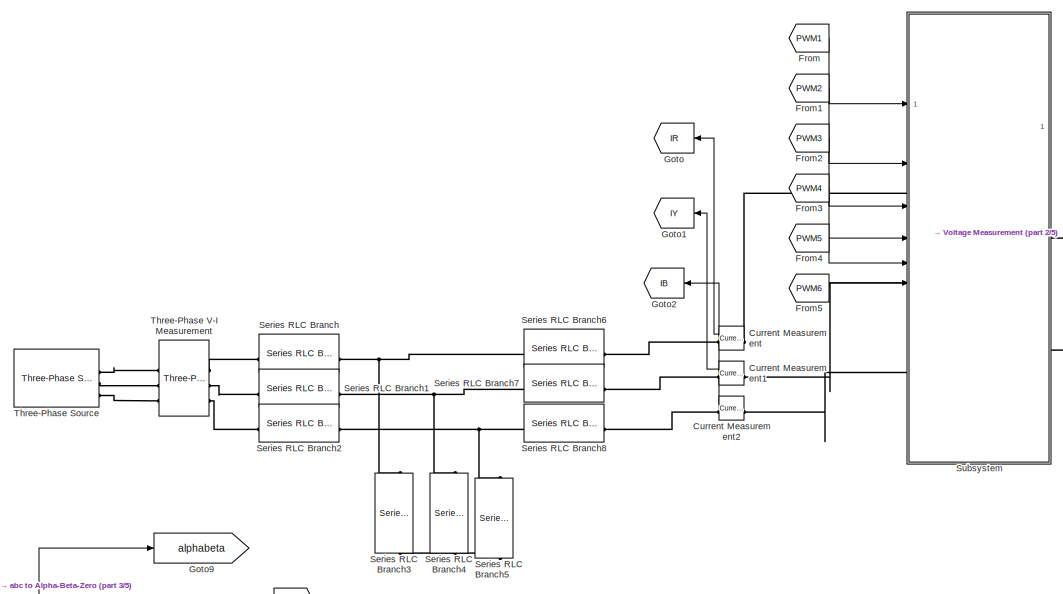
[diagram: root canvas - part 1/5, top left region]
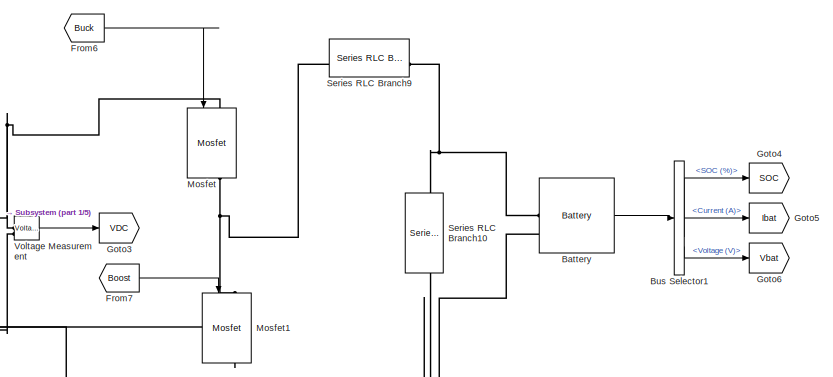
[diagram: root canvas - part 2/5, top center region]
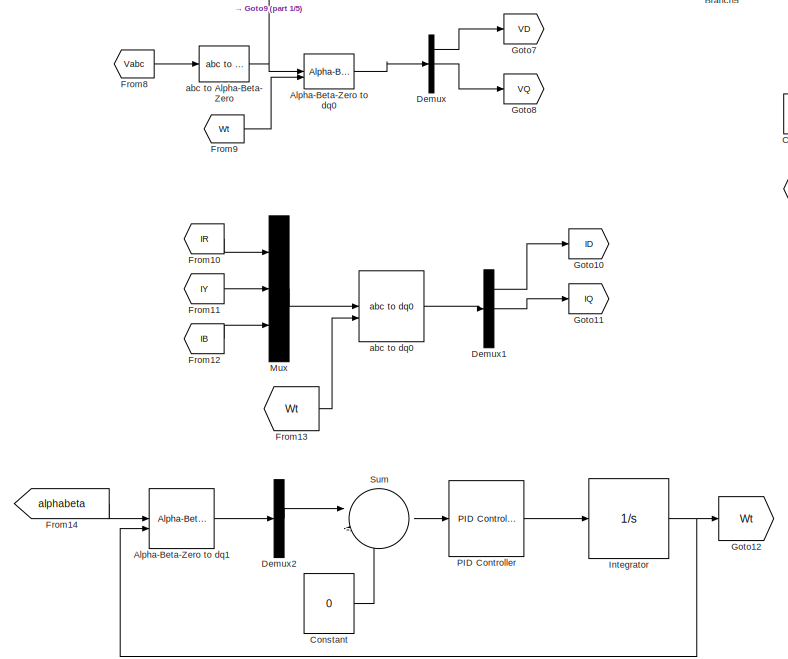
[diagram: root canvas - part 3/5, bottom left region]
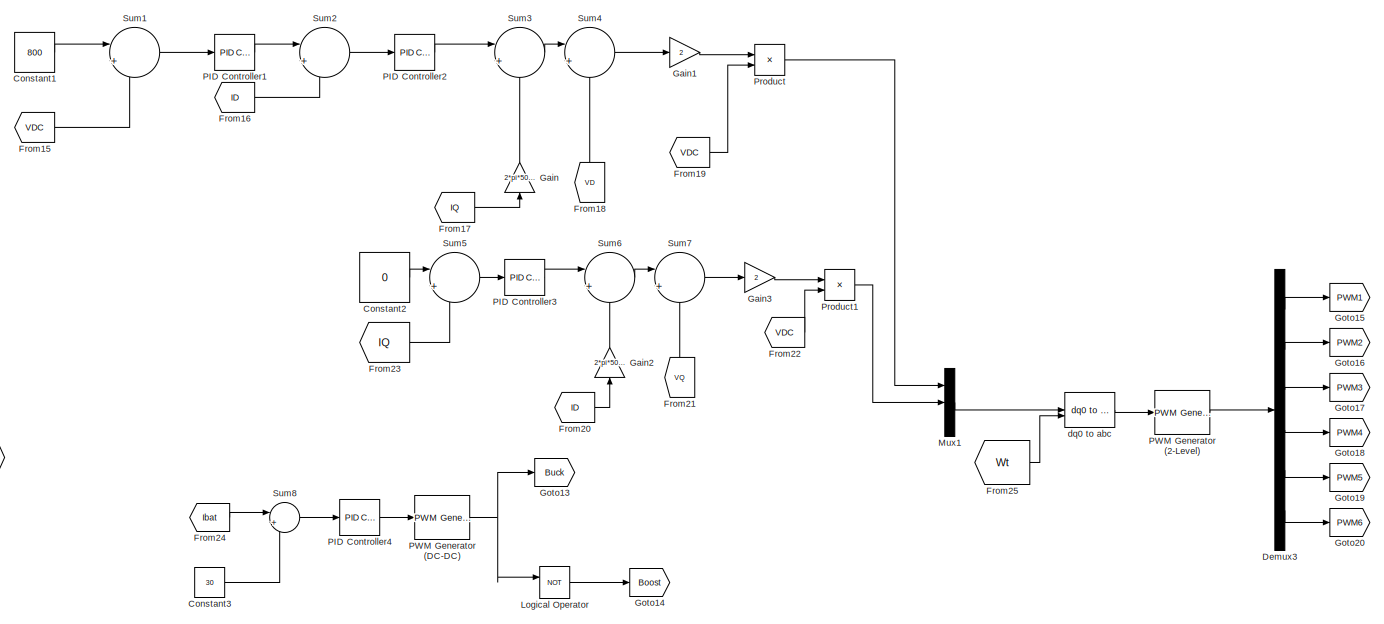
[diagram: root canvas - part 4/5, bottom center region]
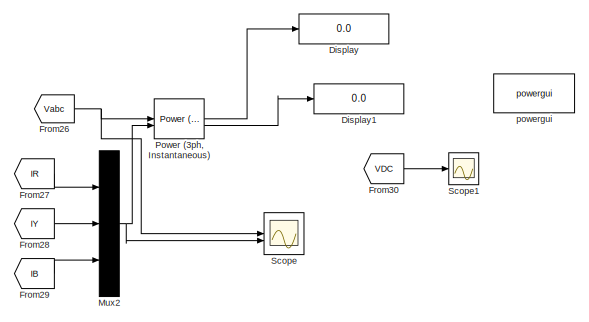
[diagram: root canvas - part 5/5, bottom right region]
MODEL slx_2435bc995689
KIND model
CONFIG AbsTol = auto
CONFIG EnableMultiTasking = off
CONFIG FixedStep = auto
CONFIG MaxStep = auto
CONFIG MinStep = auto
CONFIG RelTol = 1e-3
CONFIG SampleTimeConstraint = Unconstrained
CONFIG SolverName = ode23t
CONFIG StartTime = 0.0
CONFIG StopTime = 1
BLOCK [Reference] Alpha-Beta-Zero to dq0  REF=spsAlphaBetaZerotodq0Lib/Alpha-Beta-Zero
to dq0
  LibrarySourceBlock = sps_lib/Control/Alpha-Beta-Zero\nto dq0
  SourceBlock = spsAlphaBetaZerotodq0Lib/Alpha-Beta-Zero\nto dq0
  SourceType = Alpha-Beta-Zero to dq0 Transformation
BLOCK [Reference] Alpha-Beta-Zero to dq1  REF=spsAlphaBetaZerotodq0Lib/Alpha-Beta-Zero
to dq0
  LibrarySourceBlock = sps_lib/Control/Alpha-Beta-Zero\nto dq0
  SourceBlock = spsAlphaBetaZerotodq0Lib/Alpha-Beta-Zero\nto dq0
  SourceType = Alpha-Beta-Zero to dq0 Transformation
BLOCK [Reference] Battery  REF=spsBatteryLib/Battery
  LibrarySourceBlock = sps_lib/Sources/Battery
  SourceBlock = spsBatteryLib/Battery
  SourceType = Battery
BLOCK [BusSelector] Bus Selector1
  OutputSignals = SOC (%),Current (A),Voltage (V)
BLOCK [Constant] Constant
  Value = 0
BLOCK [Constant] Constant1
  Value = 800
BLOCK [Constant] Constant2
  Value = 0
  VectorParams1D = off
BLOCK [Constant] Constant3
  Value = 30
BLOCK [Reference] Current Measurement  REF=spsCurrentMeasurementLib/Current Measurement
  LibrarySourceBlock = sps_lib/Sensors and Measurements/Current Measurement
  NameLocation = top
  SourceBlock = spsCurrentMeasurementLib/Current Measurement
  SourceType = Current Measurement
  UserDataPersistent = on
BLOCK [Reference] Current Measurement1  REF=spsCurrentMeasurementLib/Current Measurement
  LibrarySourceBlock = sps_lib/Sensors and Measurements/Current Measurement
  NameLocation = top
  SourceBlock = spsCurrentMeasurementLib/Current Measurement
  SourceType = Current Measurement
  UserDataPersistent = on
BLOCK [Reference] Current Measurement2  REF=spsCurrentMeasurementLib/Current Measurement
  LibrarySourceBlock = sps_lib/Sensors and Measurements/Current Measurement
  NameLocation = top
  SourceBlock = spsCurrentMeasurementLib/Current Measurement
  SourceType = Current Measurement
  UserDataPersistent = on
BLOCK [Demux] Demux
  Outputs = 3
BLOCK [Demux] Demux1
  Outputs = 3
BLOCK [Demux] Demux2
  Outputs = 3
BLOCK [Demux] Demux3
  Outputs = 6
BLOCK [Display] Display
  Decimation = 1
BLOCK [Display] Display1
  Decimation = 1
BLOCK [From] From
  GotoTag = PWM1
BLOCK [From] From1
  GotoTag = PWM2
BLOCK [From] From10
  GotoTag = IR
  NameLocation = top
BLOCK [From] From11
  GotoTag = IY
  NameLocation = top
BLOCK [From] From12
  GotoTag = IB
  NameLocation = top
BLOCK [From] From13
  GotoTag = Wt
BLOCK [From] From14
  GotoTag = alphabeta
BLOCK [From] From15
  GotoTag = VDC
BLOCK [From] From16
  GotoTag = ID
BLOCK [From] From17
  GotoTag = IQ
BLOCK [From] From18
  GotoTag = VD
  NameLocation = right
BLOCK [From] From19
  GotoTag = VDC
BLOCK [From] From2
  GotoTag = PWM3
BLOCK [From] From20
  GotoTag = ID
BLOCK [From] From21
  GotoTag = VQ
  NameLocation = right
BLOCK [From] From22
  GotoTag = VDC
BLOCK [From] From23
  GotoTag = IQ
BLOCK [From] From24
  GotoTag = Ibat
BLOCK [From] From25
  GotoTag = Wt
BLOCK [From] From26
  GotoTag = Vabc
  TagVisibility = global
BLOCK [From] From27
  GotoTag = IR
  NameLocation = top
BLOCK [From] From28
  GotoTag = IY
  NameLocation = top
BLOCK [From] From29
  GotoTag = IB
  NameLocation = top
BLOCK [From] From3
  GotoTag = PWM4
BLOCK [From] From30
  GotoTag = VDC
BLOCK [From] From4
  GotoTag = PWM5
BLOCK [From] From5
  GotoTag = PWM6
BLOCK [From] From6
  GotoTag = Buck
BLOCK [From] From7
  GotoTag = Boost
BLOCK [From] From8
  GotoTag = Vabc
  TagVisibility = global
BLOCK [From] From9
  GotoTag = Wt
BLOCK [Gain] Gain
  Gain = 2*pi*50*10e-3
  NameLocation = right
BLOCK [Gain] Gain1
  Gain = 2
BLOCK [Gain] Gain2
  Gain = 2*pi*50*10e-3
  NameLocation = right
BLOCK [Gain] Gain3
  Gain = 2
BLOCK [Goto] Goto
  GotoTag = IR
  NameLocation = top
BLOCK [Goto] Goto1
  GotoTag = IY
  NameLocation = top
BLOCK [Goto] Goto10
  GotoTag = ID
BLOCK [Goto] Goto11
  GotoTag = IQ
BLOCK [Goto] Goto12
  GotoTag = Wt
BLOCK [Goto] Goto13
  GotoTag = Buck
BLOCK [Goto] Goto14
  GotoTag = Boost
BLOCK [Goto] Goto15
  GotoTag = PWM1
BLOCK [Goto] Goto16
  GotoTag = PWM2
BLOCK [Goto] Goto17
  GotoTag = PWM3
BLOCK [Goto] Goto18
  GotoTag = PWM4
BLOCK [Goto] Goto19
  GotoTag = PWM5
BLOCK [Goto] Goto2
  GotoTag = IB
  NameLocation = top
BLOCK [Goto] Goto20
  GotoTag = PWM6
BLOCK [Goto] Goto3
  GotoTag = VDC
BLOCK [Goto] Goto4
  GotoTag = SOC
BLOCK [Goto] Goto5
  GotoTag = Ibat
BLOCK [Goto] Goto6
  GotoTag = Vbat
BLOCK [Goto] Goto7
  GotoTag = VD
BLOCK [Goto] Goto8
  GotoTag = VQ
BLOCK [Goto] Goto9
  GotoTag = alphabeta
BLOCK [Integrator] Integrator
BLOCK [Logic] Logical Operator
  AllPortsSameDT = off
  Operator = NOT
  OutDataTypeStr = boolean
BLOCK [Reference] Mosfet  REF=spsMosfetLib/Mosfet
  LibrarySourceBlock = sps_lib/Power Electronics/Mosfet
  NameLocation = left
  SourceBlock = spsMosfetLib/Mosfet
  SourceType = Mosfet
BLOCK [Reference] Mosfet1  REF=spsMosfetLib/Mosfet
  LibrarySourceBlock = sps_lib/Power Electronics/Mosfet
  NameLocation = left
  SourceBlock = spsMosfetLib/Mosfet
  SourceType = Mosfet
BLOCK [Mux] Mux
  DisplayOption = bar
  Inputs = 3
BLOCK [Mux] Mux1
  DisplayOption = bar
  Inputs = 3
BLOCK [Mux] Mux2
  DisplayOption = bar
  Inputs = 3
BLOCK [Reference] PID Controller  REF=slpidlib/PID Controller
  LibrarySourceBlock = simulink/Continuous/PID Controller
  SourceBlock = slpidlib/PID Controller
  SourceType = PID 1dof
BLOCK [Reference] PID Controller1  REF=slpidlib/PID Controller
  LibrarySourceBlock = simulink/Continuous/PID Controller
  SourceBlock = slpidlib/PID Controller
  SourceType = PID 1dof
BLOCK [Reference] PID Controller2  REF=slpidlib/PID Controller
  LibrarySourceBlock = simulink/Continuous/PID Controller
  SourceBlock = slpidlib/PID Controller
  SourceType = PID 1dof
BLOCK [Reference] PID Controller3  REF=slpidlib/PID Controller
  LibrarySourceBlock = simulink/Continuous/PID Controller
  SourceBlock = slpidlib/PID Controller
  SourceType = PID 1dof
BLOCK [Reference] PID Controller4  REF=slpidlib/PID Controller
  LibrarySourceBlock = simulink/Continuous/PID Controller
  SourceBlock = slpidlib/PID Controller
  SourceType = PID 1dof
BLOCK [Reference] PWM Generator (2-Level)  REF=spsPWMGenerator2LevelLib/PWM Generator
(2-Level)
  LibrarySourceBlock = sps_lib/Power Electronics/Power Electronics Control/PWM Generator\n(2-Level)
  SourceBlock = spsPWMGenerator2LevelLib/PWM Generator\n(2-Level)
  SourceType = PWM Generator (2-Level)
BLOCK [Reference] PWM Generator (DC-DC)  REF=spsPWMGeneratorDCDCLib/PWM Generator
(DC-DC)
  LibrarySourceBlock = sps_lib/Power Electronics/Power Electronics Control/PWM Generator\n(DC-DC)
  SourceBlock = spsPWMGeneratorDCDCLib/PWM Generator\n(DC-DC)
  SourceType = PWM Generator (DC-DC)
BLOCK [Reference] Power (3ph, Instantaneous)  REF=spsPower3phInstantaneousLib/Power
(3ph, Instantaneous)
  LibrarySourceBlock = sps_lib/Sensors and Measurements/Power\n(3ph, Instantaneous)
  SourceBlock = spsPower3phInstantaneousLib/Power\n(3ph, Instantaneous)
  SourceType = Power (3ph, Instantaneous)
BLOCK [Product] Product
  Inputs = */
BLOCK [Product] Product1
  Inputs = */
BLOCK [Scope] Scope
  Floating = off
  NumInputPorts = 2
  ScopeSpecificationString = Simulink.scopes.TimeScopeBlockCfg('CurrentConfiguration', extmgr.ConfigurationSet(extmgr.Configuration('Core','General UI',true),extmgr.Configuration('Core','Source UI',true),extmgr.Configuration('Sources','WiredSimulink',true),extmgr.Configuration('Visuals','Time Domain',true,'SerializedDisplays',{struct('MinYLimReal','-423.58605','MaxYLimReal','423.58609','YLabelReal','','MinYLimMag',' 0.00000',...<+2090ch>
BLOCK [Scope] Scope1
  Floating = off
  NumInputPorts = 1
  ScopeSpecificationString = Simulink.scopes.TimeScopeBlockCfg('CurrentConfiguration', extmgr.ConfigurationSet(extmgr.Configuration('Core','General UI',true),extmgr.Configuration('Core','Source UI',true),extmgr.Configuration('Sources','WiredSimulink',true,'DataLoggingVariableName','ScopeData1'),extmgr.Configuration('Visuals','Time Domain',true,'SerializedDisplays',{struct('MinYLimReal','795.33229','MaxYLimReal','840.74016','Y...<+1447ch>
BLOCK [Reference] Series RLC Branch  REF=spsSeriesRLCBranchLib/Series RLC Branch
  LibrarySourceBlock = sps_lib/Passives/Series RLC Branch
  SourceBlock = spsSeriesRLCBranchLib/Series RLC Branch
  SourceType = Series RLC Branch
BLOCK [Reference] Series RLC Branch1  REF=spsSeriesRLCBranchLib/Series RLC Branch
  LibrarySourceBlock = sps_lib/Passives/Series RLC Branch
  SourceBlock = spsSeriesRLCBranchLib/Series RLC Branch
  SourceType = Series RLC Branch
BLOCK [Reference] Series RLC Branch10  REF=spsSeriesRLCBranchLib/Series RLC Branch
  LibrarySourceBlock = sps_lib/Passives/Series RLC Branch
  NameLocation = left
  SourceBlock = spsSeriesRLCBranchLib/Series RLC Branch
  SourceType = Series RLC Branch
BLOCK [Reference] Series RLC Branch2  REF=spsSeriesRLCBranchLib/Series RLC Branch
  LibrarySourceBlock = sps_lib/Passives/Series RLC Branch
  SourceBlock = spsSeriesRLCBranchLib/Series RLC Branch
  SourceType = Series RLC Branch
BLOCK [Reference] Series RLC Branch3  REF=spsSeriesRLCBranchLib/Series RLC Branch
  LibrarySourceBlock = sps_lib/Passives/Series RLC Branch
  NameLocation = left
  SourceBlock = spsSeriesRLCBranchLib/Series RLC Branch
  SourceType = Series RLC Branch
BLOCK [Reference] Series RLC Branch4  REF=spsSeriesRLCBranchLib/Series RLC Branch
  LibrarySourceBlock = sps_lib/Passives/Series RLC Branch
  NameLocation = left
  SourceBlock = spsSeriesRLCBranchLib/Series RLC Branch
  SourceType = Series RLC Branch
BLOCK [Reference] Series RLC Branch5  REF=spsSeriesRLCBranchLib/Series RLC Branch
  LibrarySourceBlock = sps_lib/Passives/Series RLC Branch
  NameLocation = left
  SourceBlock = spsSeriesRLCBranchLib/Series RLC Branch
  SourceType = Series RLC Branch
BLOCK [Reference] Series RLC Branch6  REF=spsSeriesRLCBranchLib/Series RLC Branch
  LibrarySourceBlock = sps_lib/Passives/Series RLC Branch
  SourceBlock = spsSeriesRLCBranchLib/Series RLC Branch
  SourceType = Series RLC Branch
BLOCK [Reference] Series RLC Branch7  REF=spsSeriesRLCBranchLib/Series RLC Branch
  LibrarySourceBlock = sps_lib/Passives/Series RLC Branch
  SourceBlock = spsSeriesRLCBranchLib/Series RLC Branch
  SourceType = Series RLC Branch
BLOCK [Reference] Series RLC Branch8  REF=spsSeriesRLCBranchLib/Series RLC Branch
  LibrarySourceBlock = sps_lib/Passives/Series RLC Branch
  SourceBlock = spsSeriesRLCBranchLib/Series RLC Branch
  SourceType = Series RLC Branch
BLOCK [Reference] Series RLC Branch9  REF=spsSeriesRLCBranchLib/Series RLC Branch
  LibrarySourceBlock = sps_lib/Passives/Series RLC Branch
  SourceBlock = spsSeriesRLCBranchLib/Series RLC Branch
  SourceType = Series RLC Branch
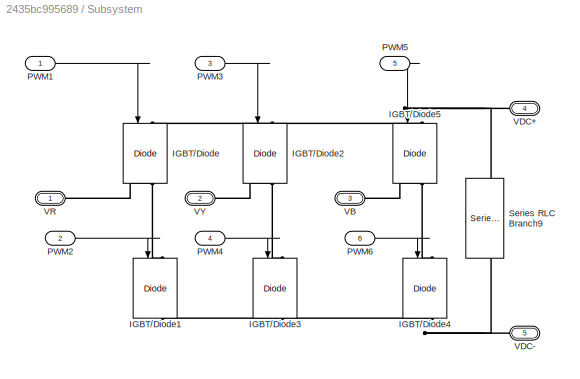
BLOCK [SubSystem] Subsystem
BLOCK [Reference] Subsystem/IGBT//Diode  REF=spsIGBTDiodeLib/IGBT//Diode
  LibrarySourceBlock = sps_lib/Power Electronics/IGBT//Diode
  NameLocation = left
  SourceBlock = spsIGBTDiodeLib/IGBT//Diode
  SourceType = IGBT/Diode
BLOCK [Reference] Subsystem/IGBT//Diode1  REF=spsIGBTDiodeLib/IGBT//Diode
  LibrarySourceBlock = sps_lib/Power Electronics/IGBT//Diode
  NameLocation = left
  SourceBlock = spsIGBTDiodeLib/IGBT//Diode
  SourceType = IGBT/Diode
BLOCK [Reference] Subsystem/IGBT//Diode2  REF=spsIGBTDiodeLib/IGBT//Diode
  LibrarySourceBlock = sps_lib/Power Electronics/IGBT//Diode
  NameLocation = left
  SourceBlock = spsIGBTDiodeLib/IGBT//Diode
  SourceType = IGBT/Diode
BLOCK [Reference] Subsystem/IGBT//Diode3  REF=spsIGBTDiodeLib/IGBT//Diode
  LibrarySourceBlock = sps_lib/Power Electronics/IGBT//Diode
  NameLocation = left
  SourceBlock = spsIGBTDiodeLib/IGBT//Diode
  SourceType = IGBT/Diode
BLOCK [Reference] Subsystem/IGBT//Diode4  REF=spsIGBTDiodeLib/IGBT//Diode
  LibrarySourceBlock = sps_lib/Power Electronics/IGBT//Diode
  NameLocation = left
  SourceBlock = spsIGBTDiodeLib/IGBT//Diode
  SourceType = IGBT/Diode
BLOCK [Reference] Subsystem/IGBT//Diode5  REF=spsIGBTDiodeLib/IGBT//Diode
  LibrarySourceBlock = sps_lib/Power Electronics/IGBT//Diode
  NameLocation = left
  SourceBlock = spsIGBTDiodeLib/IGBT//Diode
  SourceType = IGBT/Diode
BLOCK [Inport] Subsystem/PWM1
BLOCK [Inport] Subsystem/PWM2
  Port = 2
BLOCK [Inport] Subsystem/PWM3
  Port = 3
BLOCK [Inport] Subsystem/PWM4
  Port = 4
BLOCK [Inport] Subsystem/PWM5
  Port = 5
BLOCK [Inport] Subsystem/PWM6
  Port = 6
BLOCK [Reference] Subsystem/Series RLC Branch9  REF=spsSeriesRLCBranchLib/Series RLC Branch
  LibrarySourceBlock = sps_lib/Passives/Series RLC Branch
  NameLocation = left
  SourceBlock = spsSeriesRLCBranchLib/Series RLC Branch
  SourceType = Series RLC Branch
BLOCK [PMIOPort] Subsystem/VB
  Port = 3
  Side = Left
BLOCK [PMIOPort] Subsystem/VDC+
  NameLocation = top
  Port = 4
  Side = Right
BLOCK [PMIOPort] Subsystem/VDC-
  NameLocation = top
  Port = 5
  Side = Right
BLOCK [PMIOPort] Subsystem/VR
  Side = Left
BLOCK [PMIOPort] Subsystem/VY
  Port = 2
  Side = Left
BLOCK [Sum] Sum
  Inputs = |-+
BLOCK [Sum] Sum1
  Inputs = |+-
BLOCK [Sum] Sum2
  Inputs = |+-
BLOCK [Sum] Sum3
  Inputs = |++
BLOCK [Sum] Sum4
  Inputs = |++
BLOCK [Sum] Sum5
  Inputs = |+-
BLOCK [Sum] Sum6
  Inputs = |+-
BLOCK [Sum] Sum7
  Inputs = |++
BLOCK [Sum] Sum8
  Inputs = |+-
BLOCK [Reference] Three-Phase Source  REF=spsThreePhaseSourceLib/Three-Phase Source
  LibrarySourceBlock = sps_lib/Sources/Three-Phase Source
  SourceBlock = spsThreePhaseSourceLib/Three-Phase Source
  SourceType = Three-Phase Source
BLOCK [Reference] Three-Phase V-I Measurement  REF=spsThreePhaseVIMeasurementLib/Three-Phase
V-I Measurement
  LibrarySourceBlock = sps_lib/Sensors and Measurements/Three-Phase\nV-I Measurement
  SourceBlock = spsThreePhaseVIMeasurementLib/Three-Phase\nV-I Measurement
  SourceType = Three-Phase VI Measurement
BLOCK [Reference] Voltage Measurement  REF=spsVoltageMeasurementLib/Voltage Measurement
  LibrarySourceBlock = sps_lib/Sensors and Measurements/Voltage Measurement
  SourceBlock = spsVoltageMeasurementLib/Voltage Measurement
  SourceType = Voltage Measurement
  UserDataPersistent = on
BLOCK [Reference] abc to Alpha-Beta-Zero  REF=spsabctoAlphaBetaZeroLib/abc to
Alpha-Beta-Zero
  LibrarySourceBlock = sps_lib/Control/abc to\nAlpha-Beta-Zero
  SourceBlock = spsabctoAlphaBetaZeroLib/abc to\nAlpha-Beta-Zero
  SourceType = abc to Alpha-Beta-Zero Transformation
BLOCK [Reference] abc to dq0  REF=spsabctodq0Lib/abc to dq0
  LibrarySourceBlock = sps_lib/Control/abc to dq0
  SourceBlock = spsabctodq0Lib/abc to dq0
  SourceType = abc to dq0 Transformation
BLOCK [Reference] dq0 to abc  REF=spsdq0toabcLib/dq0 to abc
  LibrarySourceBlock = sps_lib/Control/dq0 to abc
  SourceBlock = spsdq0toabcLib/dq0 to abc
  SourceType = dq0 to abc Transformation
BLOCK [Reference] powergui  REF=sps_lib/powergui
  LibrarySourceBlock = sps_lib/powergui
  Priority = 1
  SourceBlock = sps_lib/powergui
  SourceType = PSB option menu block
LINE Alpha-Beta-Zero to dq0:1 -> Demux:1
LINE Alpha-Beta-Zero to dq1:1 -> Demux2:1
LINE Battery:1 -> Bus Selector1:1
LINE Bus Selector1:1 -> Goto4:1
LINE Bus Selector1:2 -> Goto5:1
LINE Bus Selector1:3 -> Goto6:1
LINE Constant1:1 -> Sum1:1
LINE Constant2:1 -> Sum5:1
LINE Constant3:1 -> Sum8:2
LINE Constant:1 -> Sum:2
LINE Current Measurement1:1 -> Goto1:1
LINE Current Measurement2:1 -> Goto2:1
LINE Current Measurement:1 -> Goto:1
LINE Demux1:1 -> Goto10:1
LINE Demux1:2 -> Goto11:1
LINE Demux2:2 -> Sum:1
LINE Demux3:1 -> Goto15:1
LINE Demux3:2 -> Goto16:1
LINE Demux3:3 -> Goto17:1
LINE Demux3:4 -> Goto18:1
LINE Demux3:5 -> Goto19:1
LINE Demux3:6 -> Goto20:1
LINE Demux:1 -> Goto7:1
LINE Demux:2 -> Goto8:1
LINE From10:1 -> Mux:1
LINE From11:1 -> Mux:2
LINE From12:1 -> Mux:3
LINE From13:1 -> abc to dq0:2
LINE From14:1 -> Alpha-Beta-Zero to dq1:1
LINE From15:1 -> Sum1:2
LINE From16:1 -> Sum2:2
LINE From17:1 -> Gain:1
LINE From18:1 -> Sum4:2
LINE From19:1 -> Product:2
LINE From1:1 -> Subsystem:2
LINE From20:1 -> Gain2:1
LINE From21:1 -> Sum7:2
LINE From22:1 -> Product1:2
LINE From23:1 -> Sum5:2
LINE From24:1 -> Sum8:1
LINE From25:1 -> dq0 to abc:2
NET From26:1 -> Power (3ph, Instantaneous):1, Scope:1
LINE From27:1 -> Mux2:1
LINE From28:1 -> Mux2:2
LINE From29:1 -> Mux2:3
LINE From2:1 -> Subsystem:3
LINE From30:1 -> Scope1:1
LINE From3:1 -> Subsystem:4
LINE From4:1 -> Subsystem:5
LINE From5:1 -> Subsystem:6
LINE From6:1 -> Mosfet:1
LINE From7:1 -> Mosfet1:1
LINE From8:1 -> abc to Alpha-Beta-Zero:1
LINE From9:1 -> Alpha-Beta-Zero to dq0:2
LINE From:1 -> Subsystem:1
LINE Gain1:1 -> Product:1
LINE Gain2:1 -> Sum6:2
LINE Gain3:1 -> Product1:1
LINE Gain:1 -> Sum3:2
NET Integrator:1 -> Alpha-Beta-Zero to dq1:2, Goto12:1
LINE Logical Operator:1 -> Goto14:1
LINE Mux1:1 -> dq0 to abc:1
NET Mux2:1 -> Power (3ph, Instantaneous):2, Scope:2
LINE Mux:1 -> abc to dq0:1
LINE PID Controller1:1 -> Sum2:1
LINE PID Controller2:1 -> Sum3:1
LINE PID Controller3:1 -> Sum6:1
LINE PID Controller4:1 -> PWM Generator (DC-DC):1
LINE PID Controller:1 -> Integrator:1
LINE PWM Generator (2-Level):1 -> Demux3:1
NET PWM Generator (DC-DC):1 -> Goto13:1, Logical Operator:1
LINE Power (3ph, Instantaneous):1 -> Display:1
LINE Power (3ph, Instantaneous):2 -> Display1:1
LINE Product1:1 -> Mux1:2
LINE Product:1 -> Mux1:1
LINE Subsystem/PWM1:1 -> Subsystem/IGBT//Diode:1
LINE Subsystem/PWM2:1 -> Subsystem/IGBT//Diode1:1
LINE Subsystem/PWM3:1 -> Subsystem/IGBT//Diode2:1
LINE Subsystem/PWM4:1 -> Subsystem/IGBT//Diode3:1
LINE Subsystem/PWM5:1 -> Subsystem/IGBT//Diode5:1
LINE Subsystem/PWM6:1 -> Subsystem/IGBT//Diode4:1
LINE Sum1:1 -> PID Controller1:1
LINE Sum2:1 -> PID Controller2:1
LINE Sum3:1 -> Sum4:1
LINE Sum4:1 -> Gain1:1
LINE Sum5:1 -> PID Controller3:1
LINE Sum6:1 -> Sum7:1
LINE Sum7:1 -> Gain3:1
LINE Sum8:1 -> PID Controller4:1
LINE Sum:1 -> PID Controller:1
LINE Voltage Measurement:1 -> Goto3:1
NET abc to Alpha-Beta-Zero:1 -> Alpha-Beta-Zero to dq0:1, Goto9:1
LINE abc to dq0:1 -> Demux1:1
LINE dq0 to abc:1 -> PWM Generator (2-Level):1
PNET net1: Battery:LConn1 -- Series RLC Branch10:LConn1 -- Series RLC Branch9:RConn1
PNET net2: Battery:LConn2 -- Mosfet1:RConn1 -- Series RLC Branch10:RConn1 -- Subsystem:RConn2 -- Voltage Measurement:LConn2
PLINE Current Measurement1:LConn1 -- Subsystem:LConn2
PLINE Current Measurement1:RConn1 -- Series RLC Branch7:RConn1
PLINE Current Measurement2:LConn1 -- Subsystem:LConn3
PLINE Current Measurement2:RConn1 -- Series RLC Branch8:RConn1
PLINE Current Measurement:LConn1 -- Subsystem:LConn1
PLINE Current Measurement:RConn1 -- Series RLC Branch6:RConn1
PNET net3: Mosfet1:LConn1 -- Mosfet:RConn1 -- Series RLC Branch9:LConn1
PNET net4: Mosfet:LConn1 -- Subsystem:RConn1 -- Voltage Measurement:LConn1
PLINE Series RLC Branch1:LConn1 -- Three-Phase V-I Measurement:RConn2
PNET net5: Series RLC Branch1:RConn1 -- Series RLC Branch4:LConn1 -- Series RLC Branch7:LConn1
PLINE Series RLC Branch2:LConn1 -- Three-Phase V-I Measurement:RConn3
PNET net6: Series RLC Branch2:RConn1 -- Series RLC Branch5:LConn1 -- Series RLC Branch8:LConn1
PNET net7: Series RLC Branch3:LConn1 -- Series RLC Branch6:LConn1 -- Series RLC Branch:RConn1
PNET net8: Series RLC Branch3:RConn1 -- Series RLC Branch4:RConn1 -- Series RLC Branch5:RConn1
PLINE Series RLC Branch:LConn1 -- Three-Phase V-I Measurement:RConn1
PNET net9: Subsystem/IGBT//Diode1:LConn1 -- Subsystem/IGBT//Diode:RConn1 -- Subsystem/VR:RConn1
PNET net10: Subsystem/IGBT//Diode1:RConn1 -- Subsystem/IGBT//Diode3:RConn1 -- Subsystem/IGBT//Diode4:RConn1 -- Subsystem/Series RLC Branch9:RConn1 -- Subsystem/VDC-:RConn1
PNET net11: Subsystem/IGBT//Diode2:LConn1 -- Subsystem/IGBT//Diode5:LConn1 -- Subsystem/IGBT//Diode:LConn1 -- Subsystem/Series RLC Branch9:LConn1 -- Subsystem/VDC+:RConn1
PNET net12: Subsystem/IGBT//Diode2:RConn1 -- Subsystem/IGBT//Diode3:LConn1 -- Subsystem/VY:RConn1
PNET net13: Subsystem/IGBT//Diode4:LConn1 -- Subsystem/IGBT//Diode5:RConn1 -- Subsystem/VB:RConn1
PLINE Three-Phase Source:RConn1 -- Three-Phase V-I Measurement:LConn1
PLINE Three-Phase Source:RConn2 -- Three-Phase V-I Measurement:LConn2
PLINE Three-Phase Source:RConn3 -- Three-Phase V-I Measurement:LConn3
note: NET lines group one-source signal fan-out (src -> all destinations, sorted); 1:1 wires keep LINE; PNET lines group multi-terminal physical nets as a canonical sorted terminal list (undirected conserving connections); 2-terminal nets keep the pairwise PLINE form
